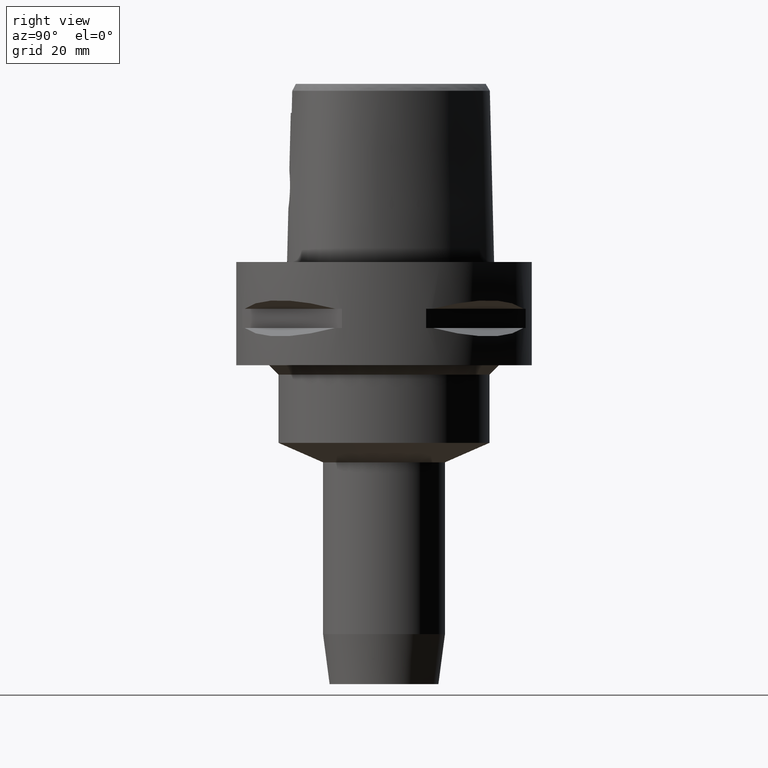
[diagram: clean part render]
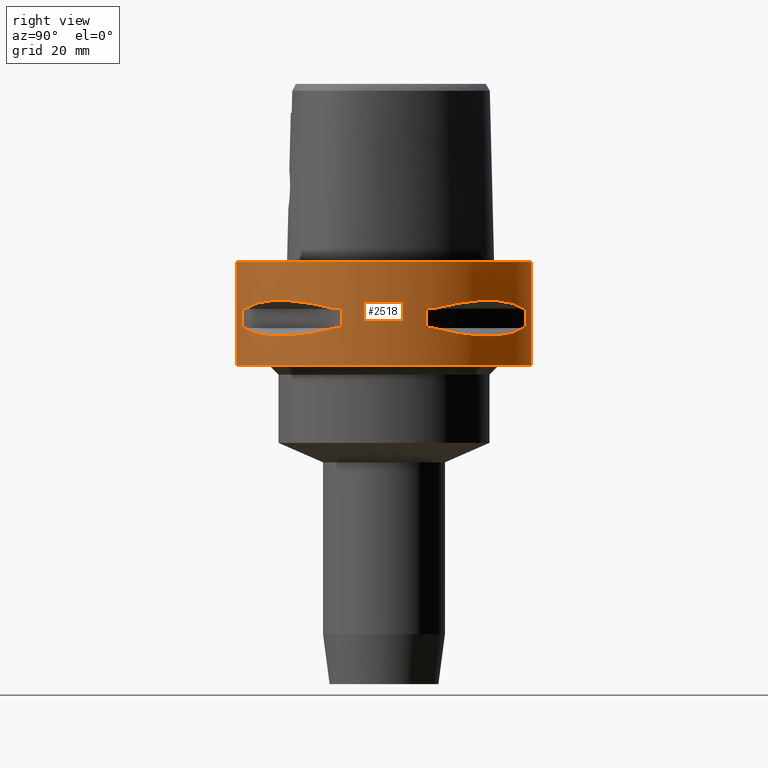
[diagram: same view with one face highlighted and labeled with its STEP entity id]
A machine part, right view. The second image highlights one B-rep face of the part: STEP entity #2518.
In plain terms, the highlighted cylindrical surface (partial cylindrical patch) has radius 31.5 mm, axis along (0, 0, -1).
Its self-contained STEP definition (entity closure, byte-faithful):
#300=CARTESIAN_POINT('',(0.E0,1.279755905109E-14,0.E0));
#301=DIRECTION('',(0.E0,0.E0,-1.E0));
#302=DIRECTION('',(0.E0,1.E0,0.E0));
#303=AXIS2_PLACEMENT_3D('',#300,#301,#302);
#394=DIRECTION('',(0.E0,0.E0,-1.E0));
#395=VECTOR('',#394,2.2E1);
#396=CARTESIAN_POINT('',(0.E0,-3.15E1,0.E0));
#397=LINE('',#396,#395);
#451=DIRECTION('',(0.E0,0.E0,-1.E0));
#452=VECTOR('',#451,2.2E1);
#453=CARTESIAN_POINT('',(0.E0,3.15E1,0.E0));
#454=LINE('',#453,#452);
#458=DIRECTION('',(0.E0,0.E0,-1.E0));
#459=VECTOR('',#458,4.1E0);
#460=CARTESIAN_POINT('',(8.981198972018E0,-3.019251670572E1,-9.95E0));
#461=LINE('',#460,#459);
#465=CARTESIAN_POINT('',(1.044775724750E1,-2.971690375018E1,-1.405E1));
#466=CARTESIAN_POINT('',(1.282388988809E1,-2.888151197365E1,-1.467900482380E1));
#467=CARTESIAN_POINT('',(1.711282138769E1,-2.674739463903E1,-1.555870402292E1));
#468=CARTESIAN_POINT('',(2.244574140438E1,-2.244574140438E1,-1.597971692370E1));
#469=CARTESIAN_POINT('',(2.674739463903E1,-1.711282138769E1,-1.555870402292E1));
#470=CARTESIAN_POINT('',(2.888151197365E1,-1.282388988809E1,-1.467900482380E1));
#471=CARTESIAN_POINT('',(2.971690375018E1,-1.044775724750E1,-1.405E1));
#476=DIRECTION('',(0.E0,0.E0,1.E0));
#477=VECTOR('',#476,4.1E0);
#478=CARTESIAN_POINT('',(3.019251670572E1,-8.981198972018E0,-1.405E1));
#479=LINE('',#478,#477);
#483=DIRECTION('',(0.E0,0.E0,-1.E0));
#484=VECTOR('',#483,4.1E0);
#485=CARTESIAN_POINT('',(3.019251670572E1,8.981198972018E0,-9.95E0));
#486=LINE('',#485,#484);
#490=CARTESIAN_POINT('',(2.971690375018E1,1.044775724750E1,-1.405E1));
#491=CARTESIAN_POINT('',(2.888151197365E1,1.282388988809E1,-1.467900482380E1));
#492=CARTESIAN_POINT('',(2.674739463903E1,1.711282138769E1,-1.555870402292E1));
#493=CARTESIAN_POINT('',(2.244574140438E1,2.244574140438E1,-1.597971692370E1));
#494=CARTESIAN_POINT('',(1.711282138769E1,2.674739463903E1,-1.555870402292E1));
#495=CARTESIAN_POINT('',(1.282388988809E1,2.888151197365E1,-1.467900482380E1));
#496=CARTESIAN_POINT('',(1.044775724750E1,2.971690375018E1,-1.405E1));
#501=DIRECTION('',(0.E0,0.E0,1.E0));
#502=VECTOR('',#501,4.1E0);
#503=CARTESIAN_POINT('',(8.981198972018E0,3.019251670572E1,-1.405E1));
#504=LINE('',#503,#502);
#508=CARTESIAN_POINT('',(0.E0,1.279755905109E-14,-2.2E1));
#509=DIRECTION('',(0.E0,0.E0,1.E0));
#510=DIRECTION('',(0.E0,-1.E0,0.E0));
#511=AXIS2_PLACEMENT_3D('',#508,#509,#510);
#1266=CARTESIAN_POINT('',(1.044775724750E1,-2.971690375018E1,
-9.949999999999E0));
#1267=CARTESIAN_POINT('',(1.282388988809E1,-2.888151197365E1,
-9.320995176198E0));
#1268=CARTESIAN_POINT('',(1.711282138769E1,-2.674739463903E1,
-8.441295977074E0));
#1269=CARTESIAN_POINT('',(2.244574140438E1,-2.244574140438E1,
-8.020283076294E0));
#1270=CARTESIAN_POINT('',(2.674739463903E1,-1.711282138769E1,
-8.441295977074E0));
#1271=CARTESIAN_POINT('',(2.888151197365E1,-1.282388988809E1,
-9.320995176198E0));
#1272=CARTESIAN_POINT('',(2.971690375018E1,-1.044775724750E1,
-9.949999999999E0));
#1277=CARTESIAN_POINT('',(0.E0,1.279755905109E-14,-9.95E0));
#1278=DIRECTION('',(0.E0,0.E0,1.E0));
#1279=DIRECTION('',(9.433937698469E-1,-3.316748332541E-1,0.E0));
#1280=AXIS2_PLACEMENT_3D('',#1277,#1278,#1279);
#1285=CARTESIAN_POINT('',(0.E0,1.279755905109E-14,-9.95E0));
#1286=DIRECTION('',(0.E0,0.E0,1.E0));
#1287=DIRECTION('',(2.851174276832E-1,-9.584925938323E-1,0.E0));
#1288=AXIS2_PLACEMENT_3D('',#1285,#1286,#1287);
#1307=CARTESIAN_POINT('',(0.E0,1.279755905109E-14,-1.405E1));
#1308=DIRECTION('',(0.E0,0.E0,-1.E0));
#1309=DIRECTION('',(9.584925938323E-1,-2.851174276832E-1,0.E0));
#1310=AXIS2_PLACEMENT_3D('',#1307,#1308,#1309);
#1315=CARTESIAN_POINT('',(0.E0,1.279755905109E-14,-1.405E1));
#1316=DIRECTION('',(0.E0,0.E0,-1.E0));
#1317=DIRECTION('',(3.316748332541E-1,-9.433937698469E-1,0.E0));
#1318=AXIS2_PLACEMENT_3D('',#1315,#1316,#1317);
#1337=CARTESIAN_POINT('',(2.971690375018E1,1.044775724750E1,-9.949999999999E0));
#1338=CARTESIAN_POINT('',(2.888151197365E1,1.282388988809E1,-9.320995176198E0));
#1339=CARTESIAN_POINT('',(2.674739463903E1,1.711282138769E1,-8.441295977074E0));
#1340=CARTESIAN_POINT('',(2.244574140438E1,2.244574140438E1,-8.020283076294E0));
#1341=CARTESIAN_POINT('',(1.711282138769E1,2.674739463903E1,-8.441295977074E0));
#1342=CARTESIAN_POINT('',(1.282388988809E1,2.888151197365E1,-9.320995176198E0));
#1343=CARTESIAN_POINT('',(1.044775724750E1,2.971690375018E1,-9.949999999999E0));
#1348=CARTESIAN_POINT('',(0.E0,1.279755905109E-14,-9.95E0));
#1349=DIRECTION('',(0.E0,0.E0,1.E0));
#1350=DIRECTION('',(3.316748332541E-1,9.433937698469E-1,0.E0));
#1351=AXIS2_PLACEMENT_3D('',#1348,#1349,#1350);
#1356=CARTESIAN_POINT('',(0.E0,1.279755905109E-14,-9.95E0));
#1357=DIRECTION('',(0.E0,0.E0,1.E0));
#1358=DIRECTION('',(9.584925938323E-1,2.851174276832E-1,0.E0));
#1359=AXIS2_PLACEMENT_3D('',#1356,#1357,#1358);
#1378=CARTESIAN_POINT('',(0.E0,1.279755905109E-14,-1.405E1));
#1379=DIRECTION('',(0.E0,0.E0,-1.E0));
#1380=DIRECTION('',(2.851174276832E-1,9.584925938323E-1,0.E0));
#1381=AXIS2_PLACEMENT_3D('',#1378,#1379,#1380);
#1386=CARTESIAN_POINT('',(0.E0,1.279755905109E-14,-1.405E1));
#1387=DIRECTION('',(0.E0,0.E0,-1.E0));
#1388=DIRECTION('',(9.433937698469E-1,3.316748332541E-1,0.E0));
#1389=AXIS2_PLACEMENT_3D('',#1386,#1387,#1388);
#1576=CARTESIAN_POINT('',(0.E0,-3.15E1,0.E0));
#1577=CARTESIAN_POINT('',(0.E0,3.15E1,0.E0));
#1578=VERTEX_POINT('',#1576);
#1579=VERTEX_POINT('',#1577);
#1580=CARTESIAN_POINT('',(0.E0,3.15E1,-2.2E1));
#1581=VERTEX_POINT('',#1580);
#1582=CARTESIAN_POINT('',(0.E0,-3.15E1,-2.2E1));
#1583=VERTEX_POINT('',#1582);
#1610=VERTEX_POINT('',#1266);
#1611=VERTEX_POINT('',#1272);
#1612=CARTESIAN_POINT('',(8.981198972020E0,-3.019251670572E1,-9.95E0));
#1613=VERTEX_POINT('',#1612);
#1614=CARTESIAN_POINT('',(8.981198972018E0,-3.019251670572E1,-1.405E1));
#1615=VERTEX_POINT('',#1614);
#1616=CARTESIAN_POINT('',(1.044775724750E1,-2.971690375018E1,-1.405E1));
#1617=VERTEX_POINT('',#1616);
#1618=VERTEX_POINT('',#471);
#1619=CARTESIAN_POINT('',(3.019251670572E1,-8.981198972020E0,-1.405E1));
#1620=VERTEX_POINT('',#1619);
#1621=CARTESIAN_POINT('',(3.019251670572E1,-8.981198972018E0,-9.95E0));
#1622=VERTEX_POINT('',#1621);
#1623=VERTEX_POINT('',#1337);
#1624=VERTEX_POINT('',#1343);
#1625=CARTESIAN_POINT('',(3.019251670572E1,8.981198972020E0,-9.95E0));
#1626=VERTEX_POINT('',#1625);
#1627=CARTESIAN_POINT('',(3.019251670572E1,8.981198972018E0,-1.405E1));
#1628=VERTEX_POINT('',#1627);
#1629=CARTESIAN_POINT('',(2.971690375018E1,1.044775724750E1,-1.405E1));
#1630=VERTEX_POINT('',#1629);
#1631=VERTEX_POINT('',#496);
#1632=CARTESIAN_POINT('',(8.981198972020E0,3.019251670572E1,-1.405E1));
#1633=VERTEX_POINT('',#1632);
#1634=CARTESIAN_POINT('',(8.981198972018E0,3.019251670572E1,-9.95E0));
#1635=VERTEX_POINT('',#1634);
#2470=CARTESIAN_POINT('',(0.E0,1.279755905109E-14,4.5E0));
#2471=DIRECTION('',(0.E0,0.E0,-1.E0));
#2472=DIRECTION('',(0.E0,-1.E0,0.E0));
#2473=AXIS2_PLACEMENT_3D('',#2470,#2471,#2472);
#2474=CYLINDRICAL_SURFACE('',#2473,3.15E1);
#2475=ORIENTED_EDGE('',*,*,#2424,.T.);
#2477=ORIENTED_EDGE('',*,*,#2476,.F.);
#2478=ORIENTED_EDGE('',*,*,#2427,.F.);
#2479=ORIENTED_EDGE('',*,*,#2409,.F.);
#2480=EDGE_LOOP('',(#2475,#2477,#2478,#2479));
#2481=FACE_OUTER_BOUND('',#2480,.F.);
#2483=ORIENTED_EDGE('',*,*,#2482,.F.);
#2485=ORIENTED_EDGE('',*,*,#2484,.F.);
#2487=ORIENTED_EDGE('',*,*,#2486,.T.);
#2489=ORIENTED_EDGE('',*,*,#2488,.F.);
#2491=ORIENTED_EDGE('',*,*,#2490,.T.);
#2493=ORIENTED_EDGE('',*,*,#2492,.F.);
#2495=ORIENTED_EDGE('',*,*,#2494,.T.);
#2497=ORIENTED_EDGE('',*,*,#2496,.F.);
#2498=EDGE_LOOP('',(#2483,#2485,#2487,#2489,#2491,#2493,#2495,#2497));
#2499=FACE_BOUND('',#2498,.F.);
#2501=ORIENTED_EDGE('',*,*,#2500,.F.);
#2503=ORIENTED_EDGE('',*,*,#2502,.F.);
#2505=ORIENTED_EDGE('',*,*,#2504,.T.);
#2507=ORIENTED_EDGE('',*,*,#2506,.F.);
#2509=ORIENTED_EDGE('',*,*,#2508,.T.);
#2511=ORIENTED_EDGE('',*,*,#2510,.F.);
#2513=ORIENTED_EDGE('',*,*,#2512,.T.);
#2515=ORIENTED_EDGE('',*,*,#2514,.F.);
#2516=EDGE_LOOP('',(#2501,#2503,#2505,#2507,#2509,#2511,#2513,#2515));
#2517=FACE_BOUND('',#2516,.F.);
#304=CIRCLE('',#303,3.15E1);
#472=B_SPLINE_CURVE_WITH_KNOTS('',3,(#465,#466,#467,#468,#469,#470,#471),
.UNSPECIFIED.,.F.,.F.,(4,1,1,1,4),(0.E0,2.5E-1,5.E-1,7.5E-1,1.E0),
.UNSPECIFIED.);
#497=B_SPLINE_CURVE_WITH_KNOTS('',3,(#490,#491,#492,#493,#494,#495,#496),
.UNSPECIFIED.,.F.,.F.,(4,1,1,1,4),(0.E0,2.5E-1,5.E-1,7.5E-1,1.E0),
.UNSPECIFIED.);
#512=CIRCLE('',#511,3.15E1);
#1273=B_SPLINE_CURVE_WITH_KNOTS('',3,(#1266,#1267,#1268,#1269,#1270,#1271,
#1272),.UNSPECIFIED.,.F.,.F.,(4,1,1,1,4),(0.E0,2.5E-1,5.E-1,7.5E-1,1.E0),
.UNSPECIFIED.);
#1281=CIRCLE('',#1280,3.15E1);
#1289=CIRCLE('',#1288,3.15E1);
#1311=CIRCLE('',#1310,3.15E1);
#1319=CIRCLE('',#1318,3.15E1);
#1344=B_SPLINE_CURVE_WITH_KNOTS('',3,(#1337,#1338,#1339,#1340,#1341,#1342,
#1343),.UNSPECIFIED.,.F.,.F.,(4,1,1,1,4),(0.E0,2.5E-1,5.E-1,7.5E-1,1.E0),
.UNSPECIFIED.);
#1352=CIRCLE('',#1351,3.15E1);
#1360=CIRCLE('',#1359,3.15E1);
#1382=CIRCLE('',#1381,3.15E1);
#1390=CIRCLE('',#1389,3.15E1);
#2409=EDGE_CURVE('',#1579,#1578,#304,.T.);
#2424=EDGE_CURVE('',#1579,#1581,#454,.T.);
#2427=EDGE_CURVE('',#1578,#1583,#397,.T.);
#2476=EDGE_CURVE('',#1583,#1581,#512,.T.);
#2482=EDGE_CURVE('',#1610,#1611,#1273,.T.);
#2484=EDGE_CURVE('',#1613,#1610,#1289,.T.);
#2486=EDGE_CURVE('',#1613,#1615,#461,.T.);
#2488=EDGE_CURVE('',#1617,#1615,#1319,.T.);
#2490=EDGE_CURVE('',#1617,#1618,#472,.T.);
#2492=EDGE_CURVE('',#1620,#1618,#1311,.T.);
#2494=EDGE_CURVE('',#1620,#1622,#479,.T.);
#2496=EDGE_CURVE('',#1611,#1622,#1281,.T.);
#2500=EDGE_CURVE('',#1623,#1624,#1344,.T.);
#2502=EDGE_CURVE('',#1626,#1623,#1360,.T.);
#2504=EDGE_CURVE('',#1626,#1628,#486,.T.);
#2506=EDGE_CURVE('',#1630,#1628,#1390,.T.);
#2508=EDGE_CURVE('',#1630,#1631,#497,.T.);
#2510=EDGE_CURVE('',#1633,#1631,#1382,.T.);
#2512=EDGE_CURVE('',#1633,#1635,#504,.T.);
#2514=EDGE_CURVE('',#1624,#1635,#1352,.T.);
#2518=ADVANCED_FACE('',(#2481,#2499,#2517),#2474,.T.);